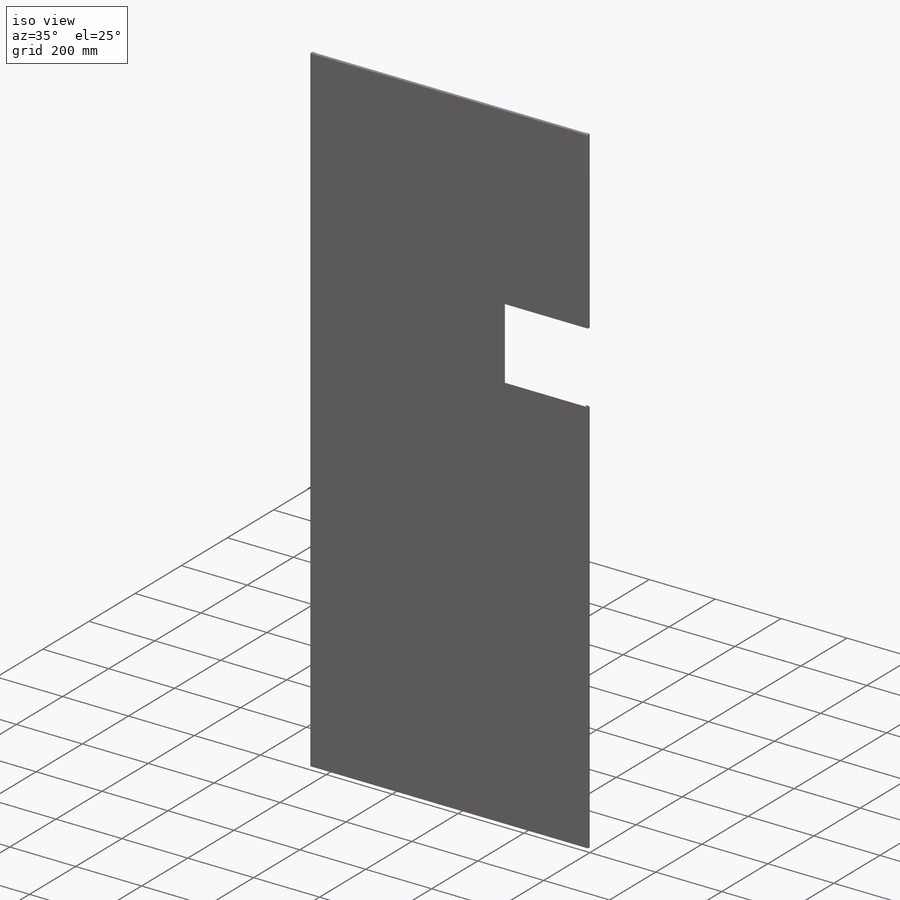
[diagram: iso view]
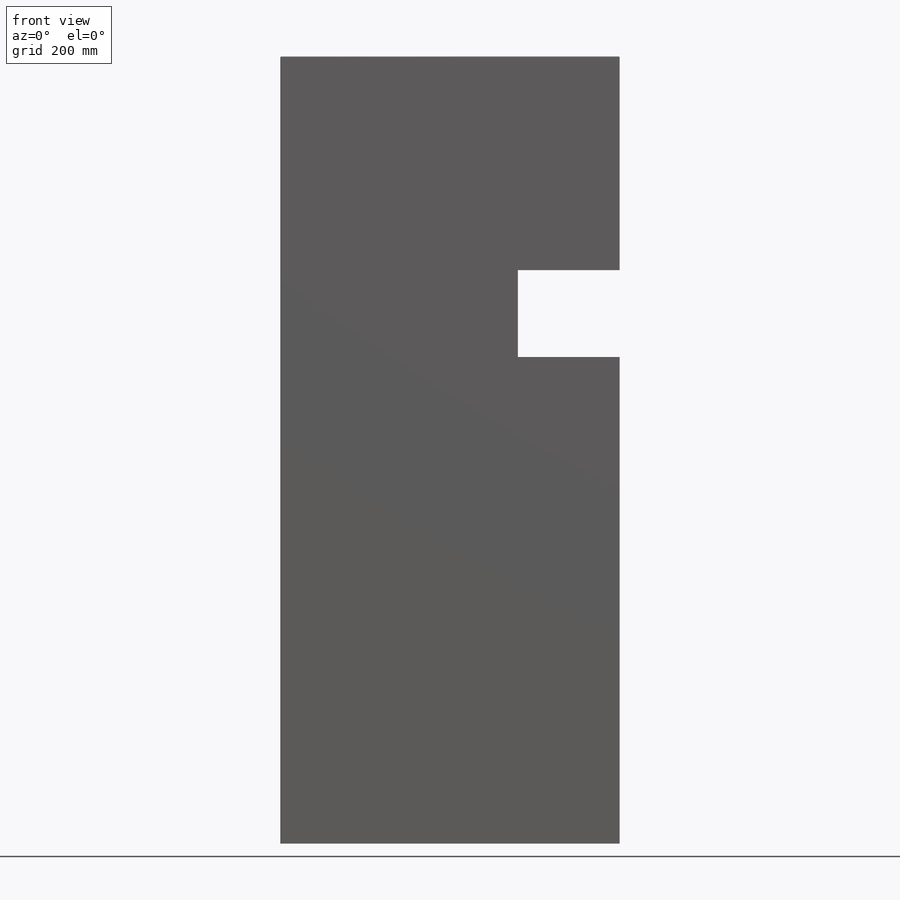
[diagram: front view]
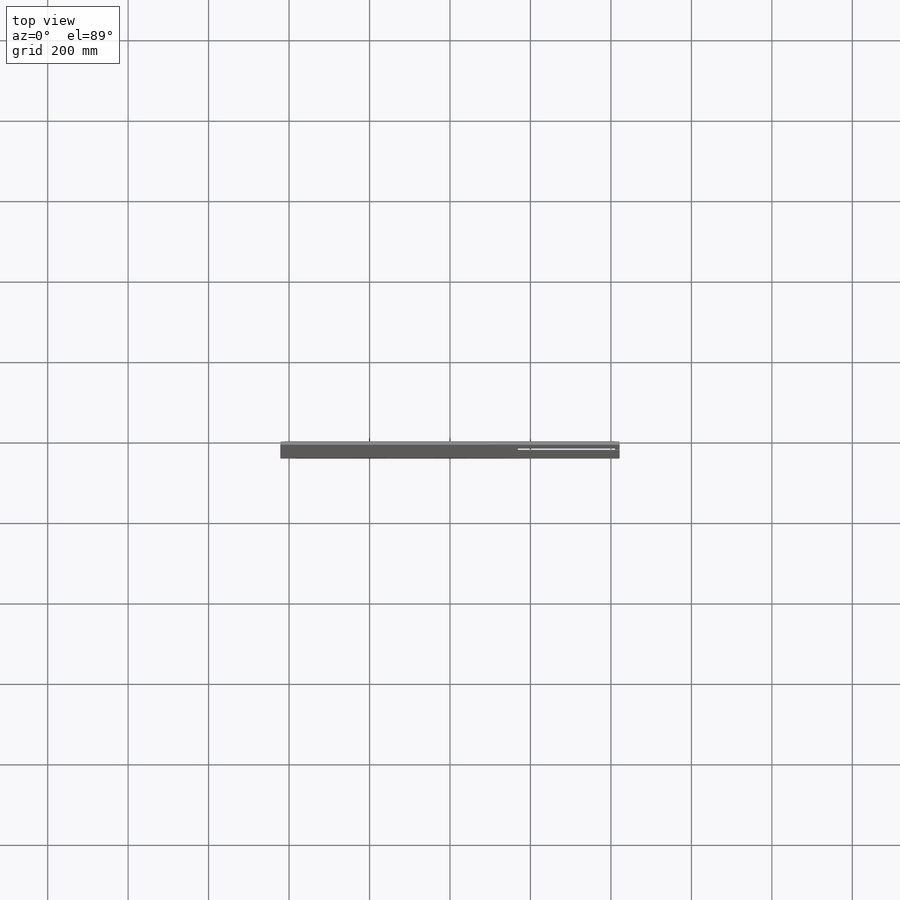
[diagram: top view]
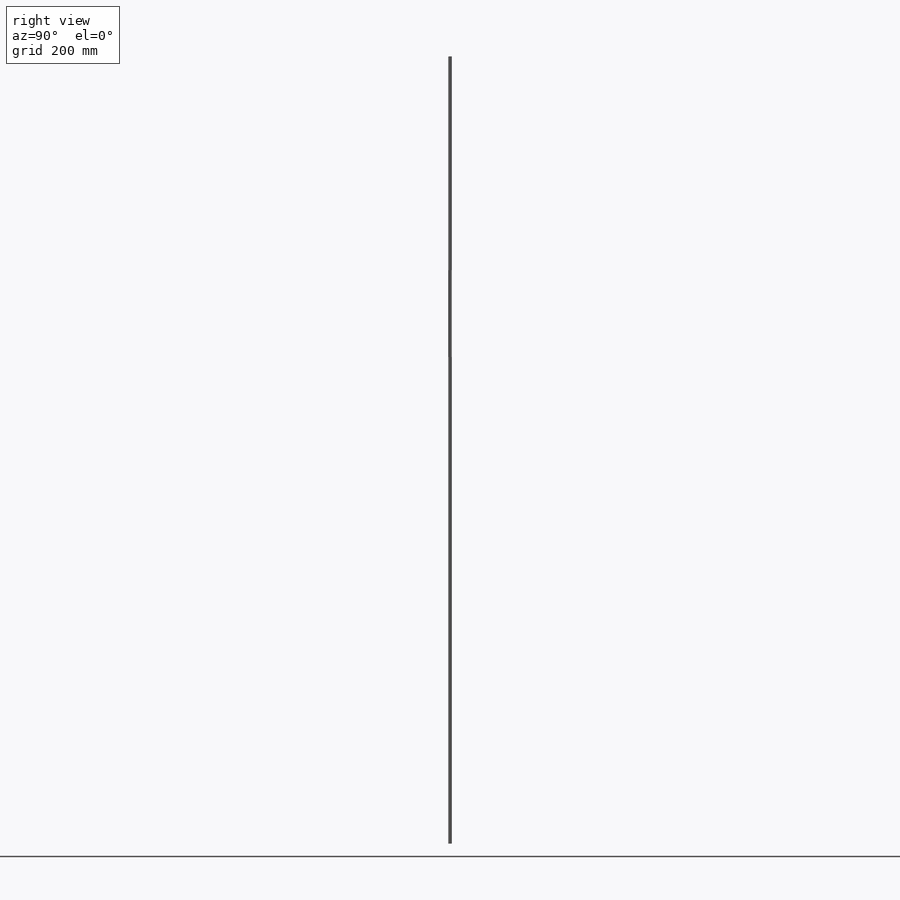
[diagram: right view]
SOLIDWORKS PART (.sldprt)
format: sldprt  version: not decoded by parser v0  size: 641,024 bytes
history: native  units: mm
features: sheet_metal_op x16, sketch x13, plane x4, cut_extrude x2, material x1 + 7 further entries (+14 scaffold rows collapsed; 1 parser-record rows omitted)
feature tree (58):
  scaffold x14  (default folders/planes/origin — collapsed)
  material  "11 373"
  plane  "Přední rovina"
  plane  "Horní rovina"
  plane  "Pravá rovina"
  plane  "Rovina1"  Offset=38mm
  sketch  "Skica1"  dims[D1=843.0mm D2=1956.5mm D3=18.25mm]
  parser-record x1  (decoder bookkeeping rows leaked as tree rows — omitted from the tree; the rows remain in map.json)
  sheet_metal_op  "Plechový díl1"  Tloušťka=1mm
  sheet_metal_op  "Plechový díl2"  Tloušťka=1mm
  sheet_metal_op  "Plechový díl3"  Tloušťka=1mm
  sheet_metal_op  "Plechový díl4"  Tloušťka=1mm
  sheet_metal_op  "Základní plech1"
  sketch  "Skica2"  dims[D1=8.5mm]
  sketch  "Skica3"  dims[D1=8.5mm]
  sketch  "Skica4"  dims[c1.D1=8.5mm c2.D1=1.0mm c2.D4=90.0deg c2.D5=1.0 c2.D8=0.05mm c2.D9=0.05mm]
  sheet_metal_op  "Ohyb z hrany2"
  sheet_metal_op  "Ohyb z hrany3"  Lem z hrany2=0
  sketch  "Skica10"  dims[D1=11.5mm]
  sketch  "Skica11"  dims[D1=11.5mm]
  sketch  "Skica12"  dims[c1.D1=11.5mm c1.D2=819.9999mm c2.D2=5e-05mm c2.D3=~11.50005mm c3.D2=~11.50005mm]
  sheet_metal_op  "Ohyb z hrany4"
  sheet_metal_op  "Ohyb z hrany5"
  sheet_metal_op  "Ohyb z hrany6"
  "Transformace skici2"
  sketch  "Skica13"  dims[c1.D1=1972.5mm c1.D2=10.5mm c1.D3=~6.494171mm c2.D3=90.0deg c3.D3=17.0mm c3.D4=27.4999mm c3.D5=17.0mm c4.D4=10.5mm c4.D6=874.9999mm]
  cut_extrude  "Odebrat vysunutím1"  [1 undecoded]
  sheet_metal_op  "OdvozenýOhyb1"
  sheet_metal_op  "OdvozenýOhyb2"
  sheet_metal_op  "OdvozenýOhyb3"
  sheet_metal_op  "OdvozenýOhyb4"
  sheet_metal_op  "OdvozenýOhyb5"
  sheet_metal_op  "OdvozenýOhyb6"
  "Transformace skici3"
  sketch  "Skica14"
  cut_extrude  "Odebrat vysunutím2"  Depth=494.2mm
  "Rozvinutý tvar1"
  sketch  "Čáry ohybu1"
  "Transformace skici1"
  "Rozvinutý tvar2"
  sketch  "Čáry ohybu2"
  "Rozvinutý tvar3"
  sketch  "Čáry ohybu3"
  "Rozvinutý tvar4"
  sketch  "Čáry ohybu4"
decode coverage: 14 of 31 modeling features carry decoded parameters; 7 rows unclassified (native names shown)
note: ~ marks probable driven/reference dimensions
note: 1 parameter value undecoded
note: suppression state not decoded; provenance and decode notes live in map.json
